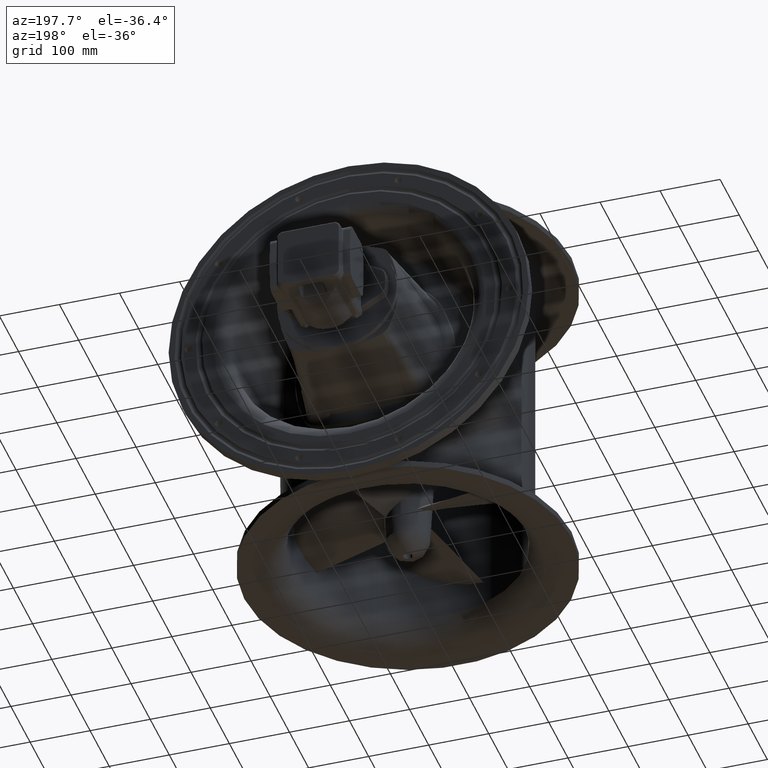
[diagram: clean part render]
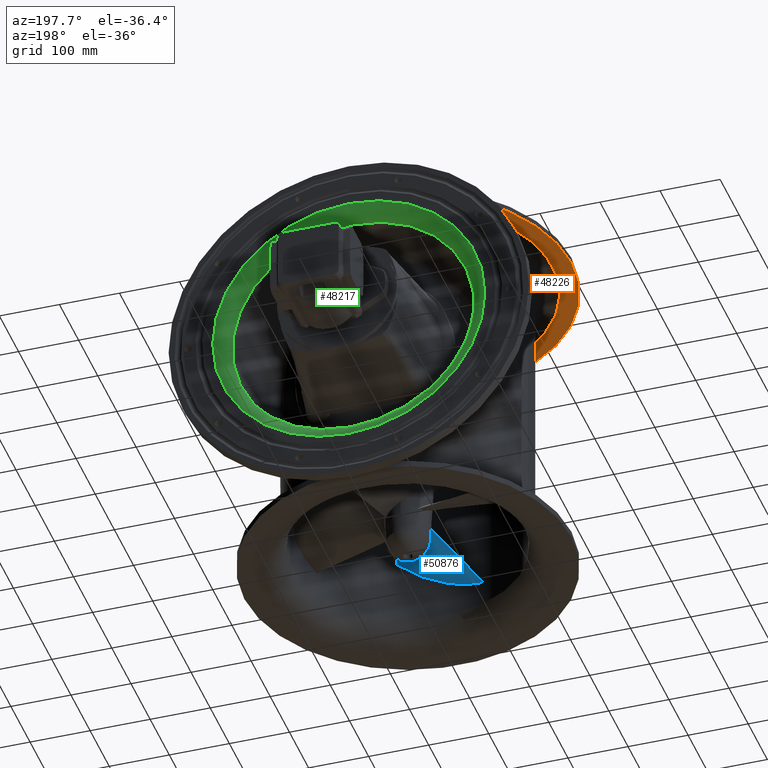
[diagram: same view with three faces highlighted in distinct colors, each labeled with its STEP entity id]
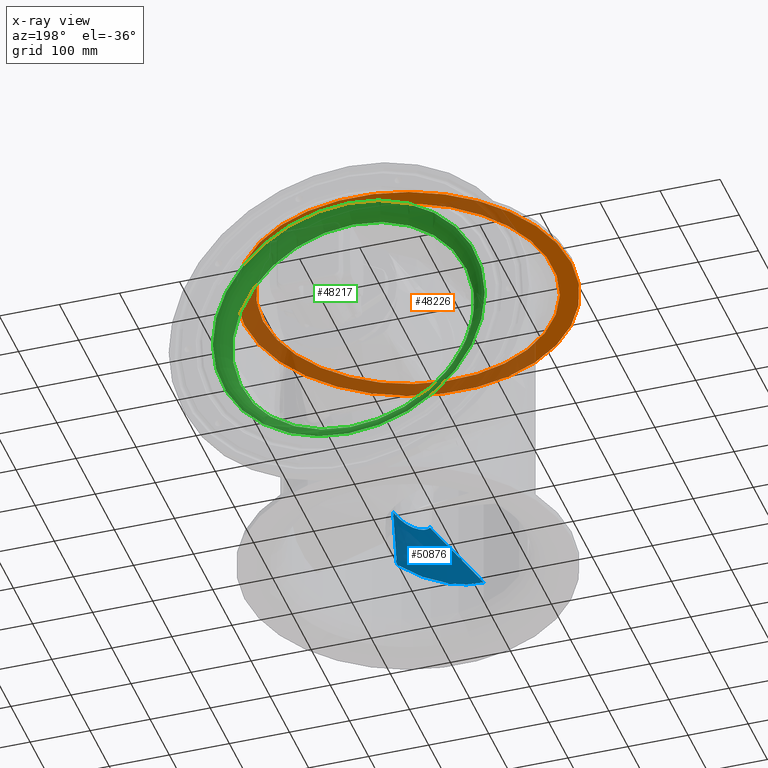
[diagram: x-ray of the same camera — body ghosted, the three highlighted faces saturated]
A machine part, auxiliary view with three faces highlighted in distinct colors.
The next image is the same camera in x-ray (body ghosted, the three faces saturated) — at least one of them is partly hidden behind the body in this view.
Their STEP definitions:

[orange] entity #48226 — the highlighted planar face has unit normal (-0, 0, -1).
#3255=PLANE('',#51056);
#5005=CIRCLE('',#51055,241.1);
#5006=CIRCLE('',#51057,272.5);
#12020=FACE_BOUND('',#15225,.T.);
#12388=FACE_OUTER_BOUND('',#15224,.T.);
#15224=EDGE_LOOP('',(#30614));
#15225=EDGE_LOOP('',(#30615));
#18730=VERTEX_POINT('',#70741);
#18731=VERTEX_POINT('',#70744);
#23304=EDGE_CURVE('',#18730,#18730,#5005,.T.);
#23305=EDGE_CURVE('',#18731,#18731,#5006,.T.);
#30614=ORIENTED_EDGE('',*,*,#23305,.F.);
#30615=ORIENTED_EDGE('',*,*,#23304,.T.);
#48226=ADVANCED_FACE('',(#12388,#12020),#3255,.T.);
#51055=AXIS2_PLACEMENT_3D('',#70742,#56124,#56125);
#51056=AXIS2_PLACEMENT_3D('',#70743,#56126,#56127);
#51057=AXIS2_PLACEMENT_3D('',#70745,#56128,#56129);
#56124=DIRECTION('center_axis',(3.33066907387543E-16,-1.9598292006493E-16,
1.));
#56125=DIRECTION('ref_axis',(1.,-9.99200722162641E-16,-3.33066907387544E-16));
#56126=DIRECTION('center_axis',(-3.33066907387543E-16,1.9598292006493E-16,
-1.));
#56127=DIRECTION('ref_axis',(0.,1.,0.));
#56128=DIRECTION('center_axis',(3.33066907387543E-16,-1.9598292006493E-16,
1.));
#56129=DIRECTION('ref_axis',(1.,-9.99200722162641E-16,-3.33066907387544E-16));
#70741=CARTESIAN_POINT('',(-253.900607936234,506.355165407791,48.8793677721313));
#70742=CARTESIAN_POINT('Origin',(-495.000607936234,506.355165407791,48.8793677721314));
#70743=CARTESIAN_POINT('Origin',(-238.200607936234,506.355165407791,48.8793677721313));
#70744=CARTESIAN_POINT('',(-222.500607936234,506.355165407791,48.8793677721313));
#70745=CARTESIAN_POINT('Origin',(-495.000607936234,506.355165407791,48.8793677721314));

[blue] entity #50876 — the highlighted face is a freeform B-spline surface patch.
#3205=B_SPLINE_SURFACE_WITH_KNOTS('',3,3,((#104003,#104004,#104005,#104006),
(#104007,#104008,#104009,#104010),(#104011,#104012,#104013,#104014),(#104015,
#104016,#104017,#104018),(#104019,#104020,#104021,#104022)),
 .UNSPECIFIED.,.F.,.F.,.F.,(4,1,4),(4,4),(0.,0.571428571428571,1.),(0.21885541195284,
0.944592000267786),.UNSPECIFIED.);
#15038=FACE_OUTER_BOUND('',#18167,.T.);
#18167=EDGE_LOOP('',(#44962,#44963,#44964,#44965));
#18542=B_SPLINE_CURVE_WITH_KNOTS('',3,(#103928,#103929,#103930,#103931,
#103932,#103933,#103934,#103935,#103936,#103937),.UNSPECIFIED.,.F.,.F.,
(4,2,2,2,4),(0.,5.63244782179109,8.16101112546217,11.434819238771,16.3065690688225),
 .UNSPECIFIED.);
#18548=B_SPLINE_CURVE_WITH_KNOTS('',3,(#104024,#104025,#104026,#104027),
 .UNSPECIFIED.,.F.,.F.,(4,4),(0.21885541195284,0.823709025792353),
 .UNSPECIFIED.);
#18549=B_SPLINE_CURVE_WITH_KNOTS('',3,(#104029,#104030,#104031,#104032,
#104033,#104034,#104035,#104036,#104037,#104038,#104039,#104040),
 .UNSPECIFIED.,.F.,.F.,(4,2,2,2,2,4),(0.,2.34270146617965,4.43021602113444,
6.38012050918397,7.4530689717417,8.51715161815602),.UNSPECIFIED.);
#18550=B_SPLINE_CURVE_WITH_KNOTS('',3,(#104041,#104042,#104043,#104044),
 .UNSPECIFIED.,.F.,.F.,(4,4),(0.220585843450594,0.81592196059834),
 .UNSPECIFIED.);
#23094=VERTEX_POINT('',#103916);
#23095=VERTEX_POINT('',#103917);
#23100=VERTEX_POINT('',#104023);
#23101=VERTEX_POINT('',#104028);
#30249=EDGE_CURVE('',#23095,#23094,#18542,.T.);
#30255=EDGE_CURVE('',#23100,#23094,#18548,.T.);
#30256=EDGE_CURVE('',#23101,#23100,#18549,.T.);
#30257=EDGE_CURVE('',#23101,#23095,#18550,.T.);
#44962=ORIENTED_EDGE('',*,*,#30249,.T.);
#44963=ORIENTED_EDGE('',*,*,#30255,.F.);
#44964=ORIENTED_EDGE('',*,*,#30256,.F.);
#44965=ORIENTED_EDGE('',*,*,#30257,.T.);
#50876=ADVANCED_FACE('',(#15038),#3205,.T.);
#103916=CARTESIAN_POINT('',(-565.519046742357,332.081960960443,-413.087661370242));
#103917=CARTESIAN_POINT('',(-421.322381518098,333.394132363126,-346.766886561204));
#103928=CARTESIAN_POINT('Ctrl Pts',(-421.322381518098,333.394132363125,
-346.766886561204));
#103929=CARTESIAN_POINT('Ctrl Pts',(-435.622632672138,327.302487766556,
-357.297260585817));
#103930=CARTESIAN_POINT('Ctrl Pts',(-451.27805834657,322.746873604878,-366.755559465473));
#103931=CARTESIAN_POINT('Ctrl Pts',(-475.254327464244,319.244376583802,
-379.172260898668));
#103932=CARTESIAN_POINT('Ctrl Pts',(-482.837847677261,318.59131243515,-382.823276628444));
#103933=CARTESIAN_POINT('Ctrl Pts',(-500.488448952319,318.171432028316,
-390.759159466724));
#103934=CARTESIAN_POINT('Ctrl Pts',(-510.598704901234,318.723724638866,
-394.901146443863));
#103935=CARTESIAN_POINT('Ctrl Pts',(-535.836944010382,322.21229799136,-404.338532242473));
#103936=CARTESIAN_POINT('Ctrl Pts',(-550.910099384703,326.170552126655,
-409.180757213296));
#103937=CARTESIAN_POINT('Ctrl Pts',(-565.519046742357,332.081960960443,
-413.087661370242));
#104003=CARTESIAN_POINT('Ctrl Pts',(-524.289178939313,482.940767876138,
-401.885803328321));
#104004=CARTESIAN_POINT('Ctrl Pts',(-537.158201794529,435.800292522736,
-405.382224123338));
#104005=CARTESIAN_POINT('Ctrl Pts',(-565.38631871195,332.686690769662,-413.051600120618));
#104006=CARTESIAN_POINT('Ctrl Pts',(-569.326113386186,318.086989995886,
-414.122013949397));
#104007=CARTESIAN_POINT('Ctrl Pts',(-510.594574622837,482.940767876138,
-396.548941748443));
#104008=CARTESIAN_POINT('Ctrl Pts',(-518.550210523841,435.800292522736,
-399.249224480059));
#104009=CARTESIAN_POINT('Ctrl Pts',(-535.998523671001,332.686690769662,
-405.174778632399));
#104010=CARTESIAN_POINT('Ctrl Pts',(-538.434106566887,318.086989995886,
-406.001458299118));
#104011=CARTESIAN_POINT('Ctrl Pts',(-488.06911069996,482.940767876138,-383.683761877571));
#104012=CARTESIAN_POINT('Ctrl Pts',(-487.398654100024,435.800292522736,
-384.536156141967));
#104013=CARTESIAN_POINT('Ctrl Pts',(-485.928871130721,332.686690769662,
-386.405090767199));
#104014=CARTESIAN_POINT('Ctrl Pts',(-485.723613795222,318.086989995886,
-386.666047517451));
#104015=CARTESIAN_POINT('Ctrl Pts',(-469.778174537853,482.940767876138,
-365.727301891155));
#104016=CARTESIAN_POINT('Ctrl Pts',(-460.416735487909,435.800292522736,
-363.797636524664));
#104017=CARTESIAN_POINT('Ctrl Pts',(-439.881957280774,332.686690769662,
-359.5647178844));
#104018=CARTESIAN_POINT('Ctrl Pts',(-437.015993941748,318.086989995886,
-358.973959330352));
#104019=CARTESIAN_POINT('Ctrl Pts',(-462.902584543249,482.940767876138,
-357.306662504615));
#104020=CARTESIAN_POINT('Ctrl Pts',(-449.810557548966,435.800292522736,
-353.988087290315));
#104021=CARTESIAN_POINT('Ctrl Pts',(-421.093282520515,332.686690769662,
-346.708814403597));
#104022=CARTESIAN_POINT('Ctrl Pts',(-417.085216111175,318.086989995886,
-345.692847216155));
#104023=CARTESIAN_POINT('',(-524.289178939313,482.940767876138,-401.885803328321));
#104024=CARTESIAN_POINT('Ctrl Pts',(-524.289178939313,482.940767876138,
-401.885803328321));
#104025=CARTESIAN_POINT('Ctrl Pts',(-535.014661305627,443.652288647302,
-404.799839615619));
#104026=CARTESIAN_POINT('Ctrl Pts',(-556.408760617026,365.484182641103,
-410.612462264954));
#104027=CARTESIAN_POINT('Ctrl Pts',(-565.519046742357,332.081960960443,
-413.087661370242));
#104028=CARTESIAN_POINT('',(-462.808669503677,482.602612808734,-357.282856861477));
#104029=CARTESIAN_POINT('Ctrl Pts',(-462.808669503676,482.602612808734,
-357.282856861477));
#104030=CARTESIAN_POINT('Ctrl Pts',(-466.353663704742,478.31742652167,-362.764713474789));
#104031=CARTESIAN_POINT('Ctrl Pts',(-470.910709063286,474.58207429513,-367.868114968348));
#104032=CARTESIAN_POINT('Ctrl Pts',(-481.223383520245,469.589057666543,
-377.119559733902));
#104033=CARTESIAN_POINT('Ctrl Pts',(-486.690113202914,468.157592428272,
-381.203647807628));
#104034=CARTESIAN_POINT('Ctrl Pts',(-497.881318833737,467.833685781855,
-388.519433957717));
#104035=CARTESIAN_POINT('Ctrl Pts',(-503.460698131754,468.788108231198,
-391.719639504245));
#104036=CARTESIAN_POINT('Ctrl Pts',(-511.740351415685,472.285734469975,
-396.051309237555));
#104037=CARTESIAN_POINT('Ctrl Pts',(-514.572293922309,473.908856310773,
-397.447957055057));
#104038=CARTESIAN_POINT('Ctrl Pts',(-519.82095895059,477.910606226334,-399.922873160221));
#104039=CARTESIAN_POINT('Ctrl Pts',(-522.211127031508,480.260647524897,
-400.989630785382));
#104040=CARTESIAN_POINT('Ctrl Pts',(-524.289178939313,482.940767876138,
-401.885803328321));
#104041=CARTESIAN_POINT('Ctrl Pts',(-462.808669503676,482.602612808734,
-357.282856861477));
#104042=CARTESIAN_POINT('Ctrl Pts',(-452.008083683153,443.714058069723,
-354.545117593176));
#104043=CARTESIAN_POINT('Ctrl Pts',(-430.757600575535,367.391638573173,
-349.158531805991));
#104044=CARTESIAN_POINT('Ctrl Pts',(-421.322381518098,333.394132363126,
-346.766886561204));

[green] entity #48217 — the highlighted toroidal blend (fillet) surface has major radius 226.538 mm and minor (blend) radius 25 mm.
#2427=TOROIDAL_SURFACE('',#51041,226.538262987172,25.);
#4970=CIRCLE('',#50994,201.572524618308);
#4995=CIRCLE('',#51032,226.538262987172);
#12011=FACE_BOUND('',#15207,.T.);
#12379=FACE_OUTER_BOUND('',#15206,.T.);
#15206=EDGE_LOOP('',(#30596));
#15207=EDGE_LOOP('',(#30597));
#18695=VERTEX_POINT('',#70645);
#18720=VERTEX_POINT('',#70708);
#23269=EDGE_CURVE('',#18695,#18695,#4970,.T.);
#23294=EDGE_CURVE('',#18720,#18720,#4995,.T.);
#30596=ORIENTED_EDGE('',*,*,#23294,.T.);
#30597=ORIENTED_EDGE('',*,*,#23269,.T.);
#48217=ADVANCED_FACE('',(#12379,#12011),#2427,.T.);
#50994=AXIS2_PLACEMENT_3D('',#70646,#56002,#56003);
#51032=AXIS2_PLACEMENT_3D('',#70709,#56078,#56079);
#51041=AXIS2_PLACEMENT_3D('',#70722,#56096,#56097);
#56002=DIRECTION('center_axis',(-9.99200722162641E-16,-1.,-1.9598292006493E-16));
#56003=DIRECTION('ref_axis',(-3.33066907387543E-16,1.9598292006493E-16,
-1.));
#56078=DIRECTION('center_axis',(9.99200722162641E-16,1.,1.9598292006493E-16));
#56079=DIRECTION('ref_axis',(-3.33066907387543E-16,1.9598292006493E-16,
-1.));
#56096=DIRECTION('center_axis',(9.99200722162641E-16,1.,1.9598292006493E-16));
#56097=DIRECTION('ref_axis',(2.25983189140917E-16,0.,1.));
#70645=CARTESIAN_POINT('',(-495.000607936234,791.063564313865,-14.5481076095605));
#70646=CARTESIAN_POINT('Origin',(-495.000607936234,791.063564313865,-216.120632227869));
#70708=CARTESIAN_POINT('',(-495.000607936234,814.755165407791,10.4176307593039));
#70709=CARTESIAN_POINT('Origin',(-495.000607936234,814.755165407791,-216.120632227869));
#70722=CARTESIAN_POINT('Origin',(-495.000607936234,789.755165407791,-216.120632227869));